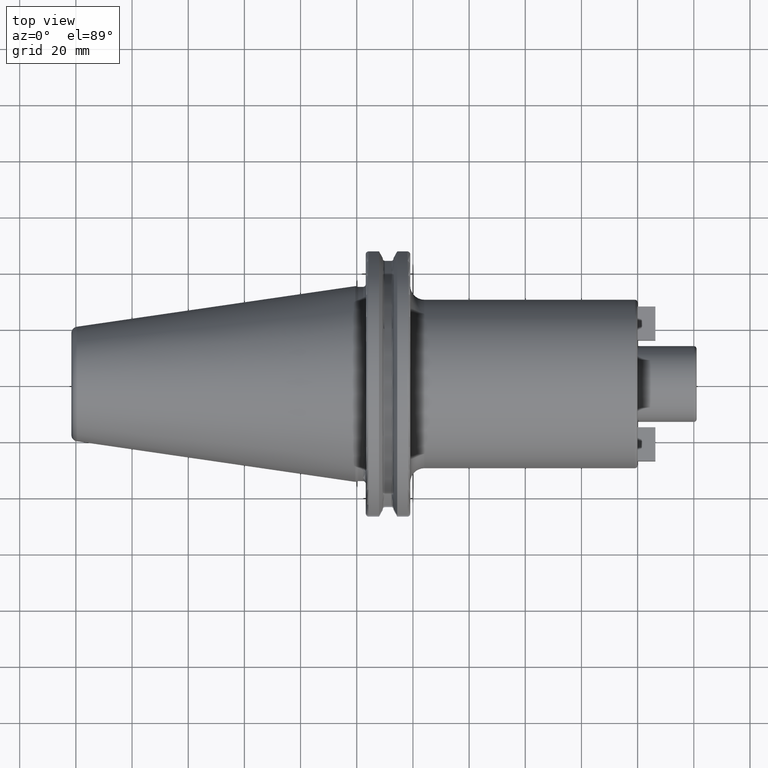
[diagram: clean part render]
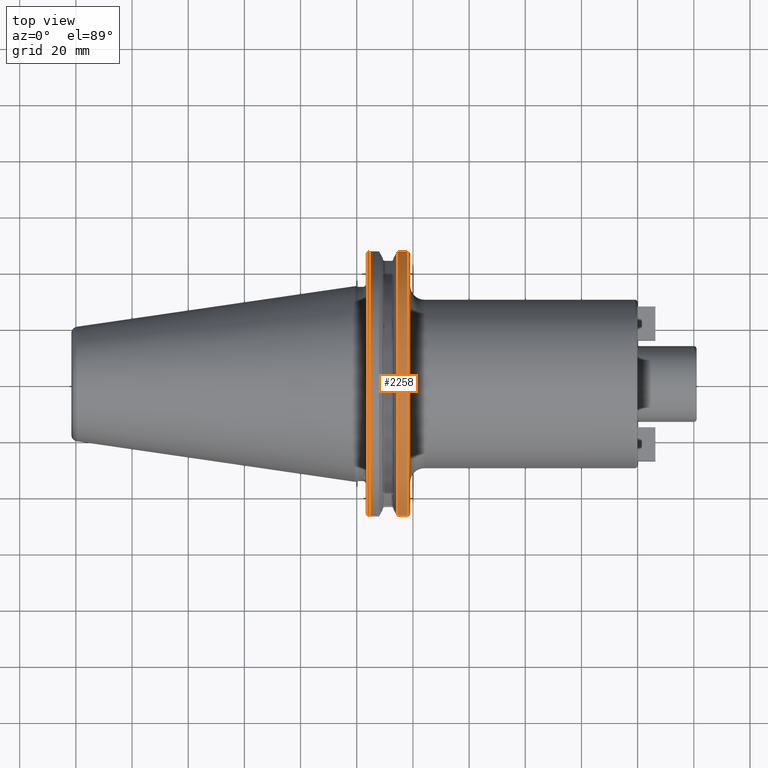
[diagram: same view with one face highlighted and labeled with its STEP entity id]
A machine part, top view. The second image highlights one B-rep face of the part: STEP entity #2258.
In plain terms, the highlighted cylindrical surface (partial cylindrical patch) has radius 48.7375 mm, axis along (1, 0, 0).
Its self-contained STEP definition (entity closure, byte-faithful):
#457=CARTESIAN_POINT('',(1.441537838583E1,4.699929686974E1,1.29E1));
#469=CARTESIAN_POINT('',(1.441537838583E1,-4.699929686974E1,1.29E1));
#489=DIRECTION('',(1.E0,0.E0,0.E0));
#490=VECTOR('',#489,3.634621614173E0);
#491=CARTESIAN_POINT('',(1.441537838583E1,4.699929686974E1,1.29E1));
#492=LINE('',#491,#490);
#493=CARTESIAN_POINT('',(1.805E1,0.E0,0.E0));
#494=DIRECTION('',(1.E0,0.E0,0.E0));
#495=DIRECTION('',(0.E0,9.643354064066E-1,2.646832521159E-1));
#496=AXIS2_PLACEMENT_3D('',#493,#494,#495);
#498=DIRECTION('',(1.E0,0.E0,0.E0));
#499=VECTOR('',#498,3.634621614173E0);
#500=CARTESIAN_POINT('',(1.441537838583E1,-4.699929686974E1,1.29E1));
#501=LINE('',#500,#499);
#502=CARTESIAN_POINT('',(1.441537838583E1,0.E0,0.E0));
#503=DIRECTION('',(1.E0,0.E0,0.E0));
#504=DIRECTION('',(0.E0,9.643354064066E-1,2.646832521159E-1));
#505=AXIS2_PLACEMENT_3D('',#502,#503,#504);
#1448=VERTEX_POINT('',#457);
#1449=VERTEX_POINT('',#469);
#1480=CARTESIAN_POINT('',(1.805E1,4.699929686974E1,1.29E1));
#1481=VERTEX_POINT('',#1480);
#1484=CARTESIAN_POINT('',(1.805E1,-4.699929686974E1,1.29E1));
#1485=VERTEX_POINT('',#1484);
#2246=CARTESIAN_POINT('',(-1.076325E2,0.E0,0.E0));
#2247=DIRECTION('',(1.E0,0.E0,0.E0));
#2248=DIRECTION('',(0.E0,-1.E0,0.E0));
#2249=AXIS2_PLACEMENT_3D('',#2246,#2247,#2248);
#2250=CYLINDRICAL_SURFACE('',#2249,4.87375E1);
#2251=ORIENTED_EDGE('',*,*,#2078,.T.);
#2253=ORIENTED_EDGE('',*,*,#2252,.T.);
#2254=ORIENTED_EDGE('',*,*,#2123,.F.);
#2255=ORIENTED_EDGE('',*,*,#2226,.F.);
#2256=EDGE_LOOP('',(#2251,#2253,#2254,#2255));
#2257=FACE_OUTER_BOUND('',#2256,.F.);
#2258=ADVANCED_FACE('',(#2257),#2250,.T.);
#497=CIRCLE('',#496,4.87375E1);
#506=CIRCLE('',#505,4.87375E1);
#2078=EDGE_CURVE('',#1448,#1481,#492,.T.);
#2123=EDGE_CURVE('',#1449,#1485,#501,.T.);
#2226=EDGE_CURVE('',#1448,#1449,#506,.T.);
#2252=EDGE_CURVE('',#1481,#1485,#497,.T.);